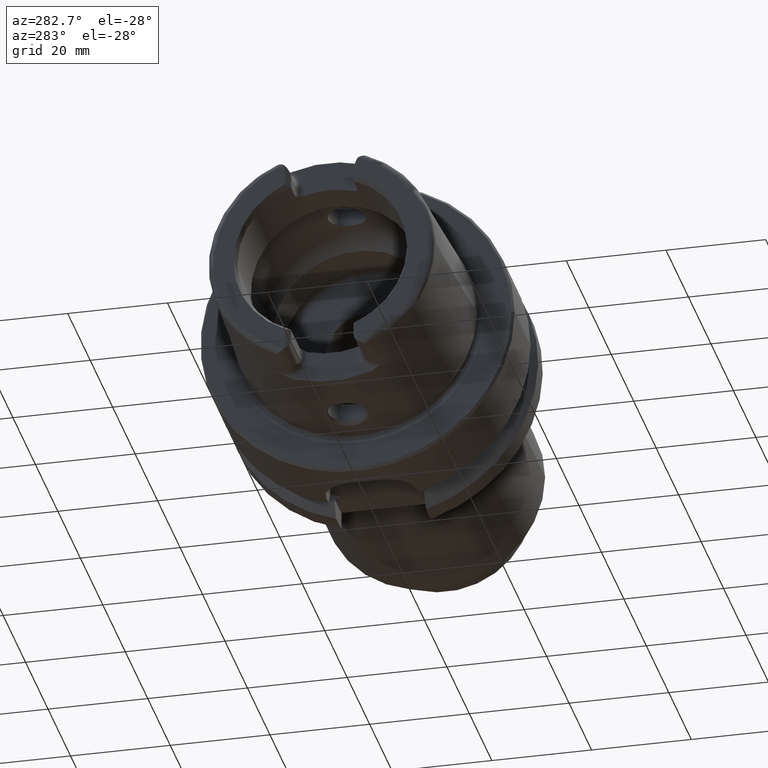
[diagram: clean part render]
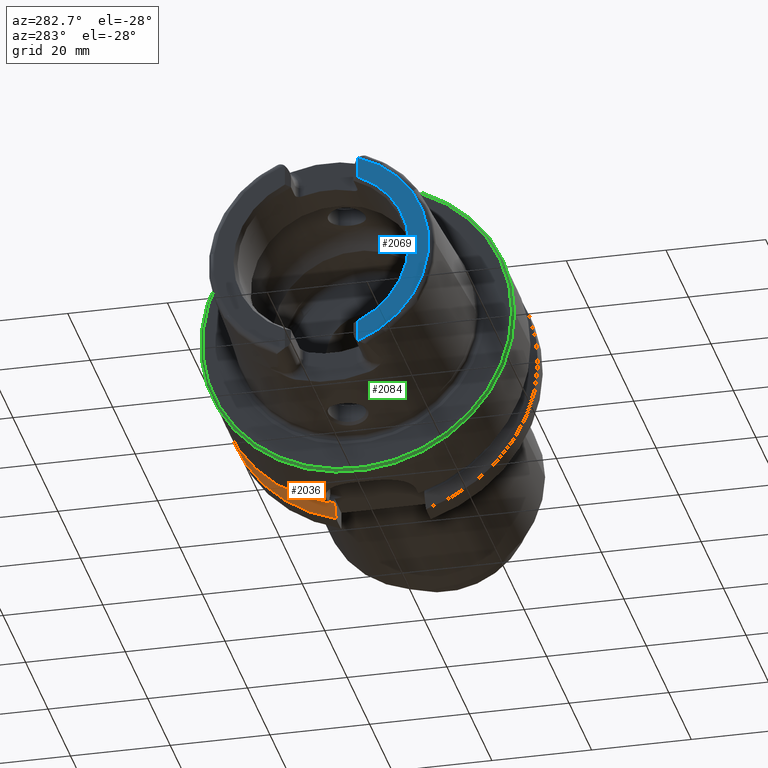
[diagram: same view with three faces highlighted in distinct colors, each labeled with its STEP entity id]
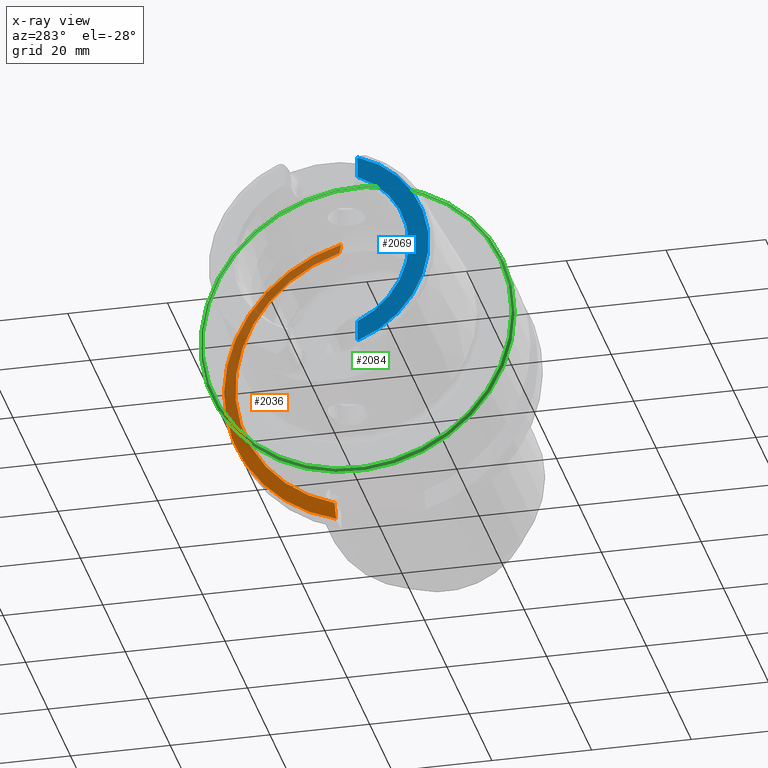
[diagram: x-ray of the same camera — body ghosted, the three highlighted faces saturated]
A machine part, auxiliary view with three faces highlighted in distinct colors.
The next image is the same camera in x-ray (body ghosted, the three faces saturated) — at least one of them is partly hidden behind the body in this view.
Their STEP definitions:

[orange] entity #2036 — the highlighted conical surface has half-angle 60 deg.
#45=(
BOUNDED_CURVE()
B_SPLINE_CURVE(2,(#4030,#4031,#4032),.UNSPECIFIED.,.F.,.F.)
B_SPLINE_CURVE_WITH_KNOTS((3,3),(0.,0.311314369989023),.UNSPECIFIED.)
CURVE()
GEOMETRIC_REPRESENTATION_ITEM()
RATIONAL_B_SPLINE_CURVE((1.,1.00102053193238,1.))
REPRESENTATION_ITEM('')
);
#48=(
BOUNDED_CURVE()
B_SPLINE_CURVE(2,(#4237,#4238,#4239),.UNSPECIFIED.,.F.,.F.)
B_SPLINE_CURVE_WITH_KNOTS((3,3),(0.,0.308905667770379),.UNSPECIFIED.)
CURVE()
GEOMETRIC_REPRESENTATION_ITEM()
RATIONAL_B_SPLINE_CURVE((1.,1.00099999355179,1.))
REPRESENTATION_ITEM('')
);
#283=FACE_OUTER_BOUND('',#411,.T.);
#411=EDGE_LOOP('',(#1683,#1684,#1685,#1686));
#752=CIRCLE('',#2246,31.5);
#756=CIRCLE('',#2254,28.8975952641916);
#939=VERTEX_POINT('',#4027);
#940=VERTEX_POINT('',#4029);
#969=VERTEX_POINT('',#4221);
#972=VERTEX_POINT('',#4235);
#1186=EDGE_CURVE('',#940,#939,#45,.T.);
#1232=EDGE_CURVE('',#940,#969,#752,.T.);
#1239=EDGE_CURVE('',#939,#972,#756,.T.);
#1240=EDGE_CURVE('',#972,#969,#48,.T.);
#1683=ORIENTED_EDGE('',*,*,#1186,.T.);
#1684=ORIENTED_EDGE('',*,*,#1239,.T.);
#1685=ORIENTED_EDGE('',*,*,#1240,.T.);
#1686=ORIENTED_EDGE('',*,*,#1232,.F.);
#1961=CONICAL_SURFACE('',#2253,30.1987976320958,1.0471975511966);
#2036=ADVANCED_FACE('',(#283),#1961,.T.);
#2246=AXIS2_PLACEMENT_3D('',#4222,#2709,#2710);
#2253=AXIS2_PLACEMENT_3D('',#4234,#2726,#2727);
#2254=AXIS2_PLACEMENT_3D('',#4236,#2728,#2729);
#2709=DIRECTION('center_axis',(1.,0.,0.));
#2710=DIRECTION('ref_axis',(0.,0.,-1.));
#2726=DIRECTION('center_axis',(1.,0.,0.));
#2727=DIRECTION('ref_axis',(0.,1.,0.));
#2728=DIRECTION('center_axis',(1.,0.,0.));
#2729=DIRECTION('ref_axis',(0.,0.,-1.));
#4027=CARTESIAN_POINT('',(19.875,9.,-27.4603534582684));
#4029=CARTESIAN_POINT('',(21.3774990747593,9.,-30.1869176962472));
#4030=CARTESIAN_POINT('Ctrl Pts',(21.3774990747593,9.,-30.1869176962472));
#4031=CARTESIAN_POINT('Ctrl Pts',(20.5907174110267,9.,-28.7648946319029));
#4032=CARTESIAN_POINT('Ctrl Pts',(19.875,9.,-27.4603534582684));
#4221=CARTESIAN_POINT('',(21.3774990747593,8.,30.4671954731642));
#4222=CARTESIAN_POINT('Origin',(21.3774990747593,0.,0.));
#4234=CARTESIAN_POINT('Origin',(20.6262495373797,0.,0.));
#4235=CARTESIAN_POINT('',(19.875,8.,27.7681654426977));
#4236=CARTESIAN_POINT('Origin',(19.875,0.,0.));
#4237=CARTESIAN_POINT('Ctrl Pts',(19.875,8.,27.7681654426977));
#4238=CARTESIAN_POINT('Ctrl Pts',(20.5914314297926,8.,29.0595327079868));
#4239=CARTESIAN_POINT('Ctrl Pts',(21.3774990747593,8.,30.4671954731642));

[blue] entity #2069 — the highlighted planar face has unit normal (-1, 0, 0).
#104=PLANE('',#2312);
#316=FACE_OUTER_BOUND('',#445,.T.);
#445=EDGE_LOOP('',(#1868,#1869,#1870,#1871,#1872,#1873));
#479=LINE('',#3101,#589);
#492=LINE('',#3214,#602);
#589=VECTOR('',#2428,10.);
#602=VECTOR('',#2475,10.);
#702=CIRCLE('',#2145,2.88);
#706=CIRCLE('',#2160,2.88);
#782=CIRCLE('',#2313,21.5760400159857);
#783=CIRCLE('',#2314,17.5773502691896);
#827=VERTEX_POINT('',#3098);
#828=VERTEX_POINT('',#3100);
#835=VERTEX_POINT('',#3133);
#848=VERTEX_POINT('',#3207);
#851=VERTEX_POINT('',#3212);
#854=VERTEX_POINT('',#3222);
#1041=EDGE_CURVE('',#827,#828,#479,.T.);
#1050=EDGE_CURVE('',#827,#835,#702,.T.);
#1069=EDGE_CURVE('',#851,#848,#492,.T.);
#1073=EDGE_CURVE('',#854,#848,#706,.T.);
#1293=EDGE_CURVE('',#854,#835,#782,.T.);
#1294=EDGE_CURVE('',#828,#851,#783,.T.);
#1868=ORIENTED_EDGE('',*,*,#1041,.F.);
#1869=ORIENTED_EDGE('',*,*,#1050,.T.);
#1870=ORIENTED_EDGE('',*,*,#1293,.F.);
#1871=ORIENTED_EDGE('',*,*,#1073,.T.);
#1872=ORIENTED_EDGE('',*,*,#1069,.F.);
#1873=ORIENTED_EDGE('',*,*,#1294,.F.);
#2069=ADVANCED_FACE('',(#316),#104,.T.);
#2145=AXIS2_PLACEMENT_3D('',#3146,#2440,#2441);
#2160=AXIS2_PLACEMENT_3D('',#3223,#2483,#2484);
#2312=AXIS2_PLACEMENT_3D('',#4427,#2861,#2862);
#2313=AXIS2_PLACEMENT_3D('',#4428,#2863,#2864);
#2314=AXIS2_PLACEMENT_3D('',#4429,#2865,#2866);
#2428=DIRECTION('',(0.,0.,1.));
#2440=DIRECTION('center_axis',(-1.,0.,0.));
#2441=DIRECTION('ref_axis',(0.,-1.,0.));
#2475=DIRECTION('',(0.,1.58830189502884E-16,1.));
#2483=DIRECTION('center_axis',(-1.,0.,0.));
#2484=DIRECTION('ref_axis',(0.,0.453346760926795,-0.891334232685576));
#2861=DIRECTION('center_axis',(-1.,0.,0.));
#2862=DIRECTION('ref_axis',(0.,0.,1.));
#2863=DIRECTION('center_axis',(1.,0.,0.));
#2864=DIRECTION('ref_axis',(0.,0.,-1.));
#2865=DIRECTION('center_axis',(-1.,0.,0.));
#2866=DIRECTION('ref_axis',(0.,-1.,0.));
#3098=CARTESIAN_POINT('',(-32.,-7.27,-20.1717424229271));
#3100=CARTESIAN_POINT('',(-32.,-7.27,-16.003447831195));
#3101=CARTESIAN_POINT('',(-32.,-7.27,-8.995));
#3133=CARTESIAN_POINT('',(-32.,-7.39118810947246,-20.2705658801576));
#3146=CARTESIAN_POINT('Origin',(-32.,-9.15,-17.99));
#3207=CARTESIAN_POINT('',(-32.,-7.26999999999999,20.1717424229271));
#3212=CARTESIAN_POINT('',(-32.,-7.26999999999999,16.003447831195));
#3214=CARTESIAN_POINT('',(-32.,-7.27,5.5));
#3222=CARTESIAN_POINT('',(-32.,-7.39118810947246,20.2705658801576));
#3223=CARTESIAN_POINT('Origin',(-32.,-9.15,17.99));
#4427=CARTESIAN_POINT('Origin',(-32.,21.5760400159857,0.));
#4428=CARTESIAN_POINT('Origin',(-32.,0.,0.));
#4429=CARTESIAN_POINT('Origin',(-32.,0.,0.));

[green] entity #2084 — the highlighted conical surface has half-angle 45 deg.
#331=FACE_OUTER_BOUND('',#464,.T.);
#464=EDGE_LOOP('',(#1934,#1935,#1936,#1937));
#575=LINE('',#4483,#685);
#685=VECTOR('',#2938,31.25);
#760=CIRCLE('',#2269,31.5);
#801=CIRCLE('',#2346,31.);
#981=VERTEX_POINT('',#4324);
#1007=VERTEX_POINT('',#4480);
#1260=EDGE_CURVE('',#981,#981,#760,.T.);
#1317=EDGE_CURVE('',#1007,#1007,#801,.T.);
#1318=EDGE_CURVE('',#981,#1007,#575,.T.);
#1934=ORIENTED_EDGE('',*,*,#1260,.F.);
#1935=ORIENTED_EDGE('',*,*,#1318,.T.);
#1936=ORIENTED_EDGE('',*,*,#1317,.T.);
#1937=ORIENTED_EDGE('',*,*,#1318,.F.);
#1968=CONICAL_SURFACE('',#2347,31.25,0.785398163397447);
#2084=ADVANCED_FACE('',(#331),#1968,.T.);
#2269=AXIS2_PLACEMENT_3D('',#4326,#2768,#2769);
#2346=AXIS2_PLACEMENT_3D('',#4481,#2934,#2935);
#2347=AXIS2_PLACEMENT_3D('',#4482,#2936,#2937);
#2768=DIRECTION('center_axis',(1.,0.,0.));
#2769=DIRECTION('ref_axis',(0.,0.,-1.));
#2934=DIRECTION('center_axis',(1.,0.,0.));
#2935=DIRECTION('ref_axis',(0.,0.,-1.));
#2936=DIRECTION('center_axis',(1.,0.,0.));
#2937=DIRECTION('ref_axis',(0.,1.,0.));
#2938=DIRECTION('',(-0.707106781186549,0.707106781186546,8.65956056235492E-17));
#4324=CARTESIAN_POINT('',(0.5,-31.5,-3.85763741731416E-15));
#4326=CARTESIAN_POINT('Origin',(0.5,0.,0.));
#4480=CARTESIAN_POINT('',(-5.89805981832114E-16,-31.,-3.7964050773568E-15));
#4481=CARTESIAN_POINT('Origin',(0.,0.,0.));
#4482=CARTESIAN_POINT('Origin',(0.25,0.,0.));
#4483=CARTESIAN_POINT('',(0.25,-31.25,-3.82702124733548E-15));